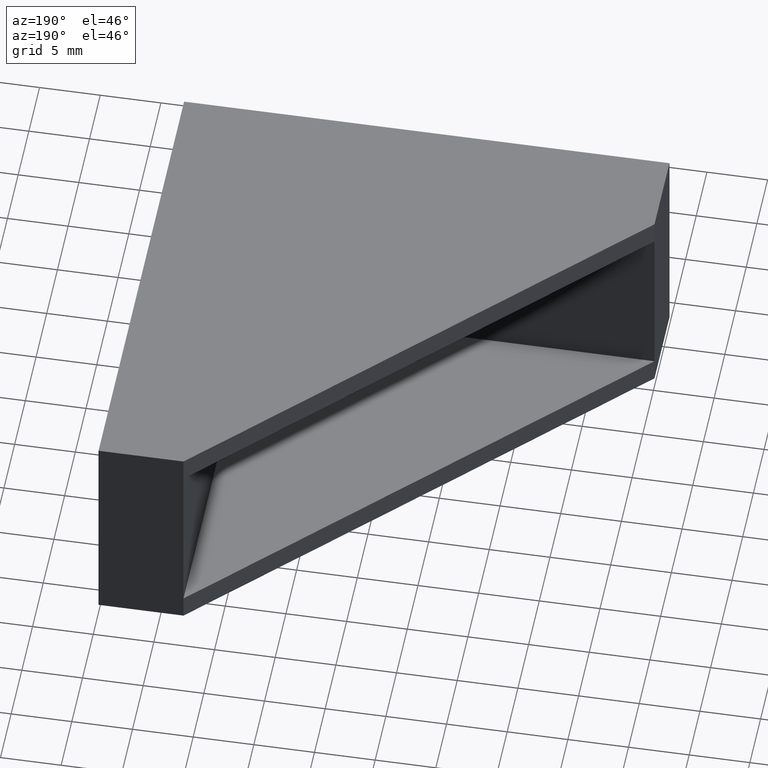
[diagram: clean part render]
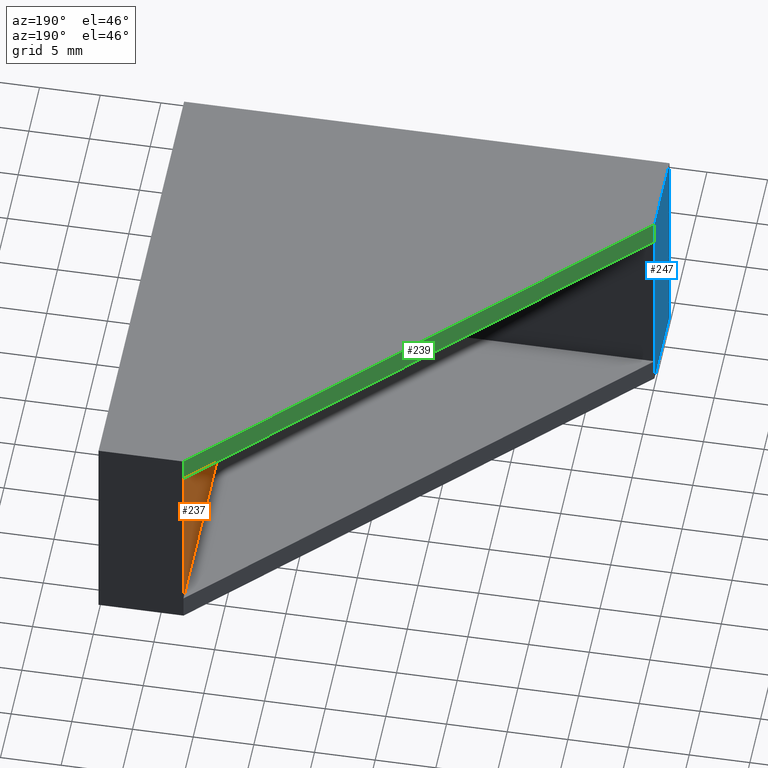
[diagram: same view with three faces highlighted in distinct colors, each labeled with its STEP entity id]
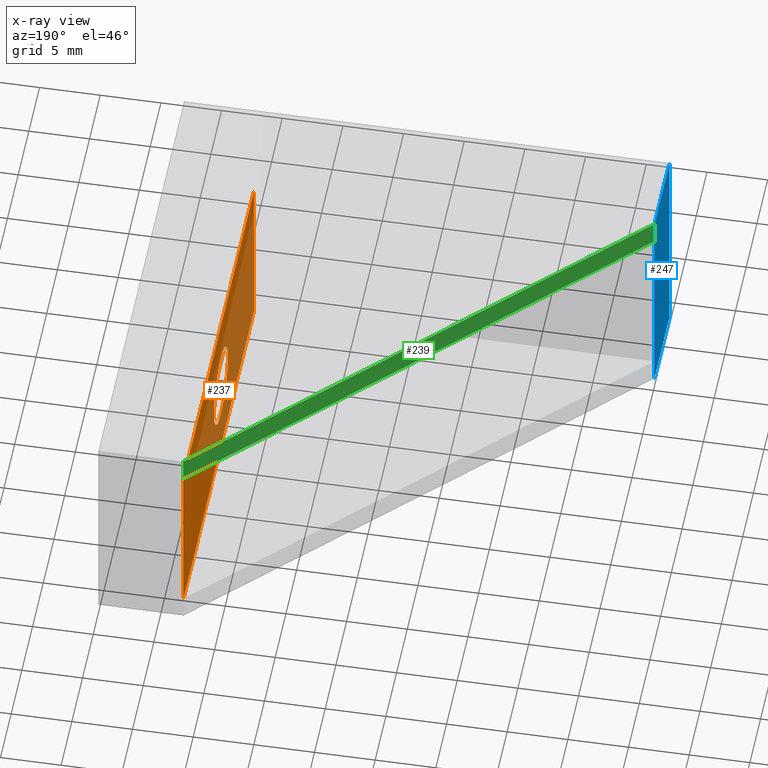
[diagram: x-ray of the same camera — body ghosted, the three highlighted faces saturated]
A machine part, auxiliary view with three faces highlighted in distinct colors.
The next image is the same camera in x-ray (body ghosted, the three faces saturated) — at least one of them is partly hidden behind the body in this view.
Their STEP definitions:

[orange] entity #237 — the highlighted planar face has unit normal (-1, 0, 0).
#15=LINE('',#347,#41);
#16=LINE('',#349,#42);
#17=LINE('',#351,#43);
#18=LINE('',#352,#44);
#41=VECTOR('',#285,32.9999999998681);
#42=VECTOR('',#286,14.);
#43=VECTOR('',#287,32.9999999998681);
#44=VECTOR('',#288,14.);
#67=PLANE('',#257);
#81=FACE_BOUND('',#104,.T.);
#87=FACE_OUTER_BOUND('',#103,.T.);
#103=EDGE_LOOP('',(#177,#178,#179,#180));
#104=EDGE_LOOP('',(#181));
#119=CIRCLE('',#252,3.25);
#123=VERTEX_POINT('',#335);
#127=VERTEX_POINT('',#345);
#128=VERTEX_POINT('',#346);
#129=VERTEX_POINT('',#348);
#130=VERTEX_POINT('',#350);
#143=EDGE_CURVE('',#123,#123,#119,.T.);
#147=EDGE_CURVE('',#127,#128,#15,.T.);
#148=EDGE_CURVE('',#128,#129,#16,.T.);
#149=EDGE_CURVE('',#130,#129,#17,.T.);
#150=EDGE_CURVE('',#127,#130,#18,.T.);
#177=ORIENTED_EDGE('',*,*,#147,.T.);
#178=ORIENTED_EDGE('',*,*,#148,.T.);
#179=ORIENTED_EDGE('',*,*,#149,.F.);
#180=ORIENTED_EDGE('',*,*,#150,.F.);
#181=ORIENTED_EDGE('',*,*,#143,.T.);
#237=ADVANCED_FACE('',(#87,#81),#67,.T.);
#252=AXIS2_PLACEMENT_3D('',#336,#273,#274);
#257=AXIS2_PLACEMENT_3D('',#344,#283,#284);
#273=DIRECTION('center_axis',(1.,0.,0.));
#274=DIRECTION('ref_axis',(0.,0.,1.));
#283=DIRECTION('center_axis',(-1.,0.,0.));
#284=DIRECTION('ref_axis',(0.,0.,1.));
#285=DIRECTION('',(0.,-1.,0.));
#286=DIRECTION('',(0.,0.,1.));
#287=DIRECTION('',(0.,-1.,0.));
#288=DIRECTION('',(0.,0.,1.));
#335=CARTESIAN_POINT('',(-7.,3.9801020972289E-16,-3.25));
#336=CARTESIAN_POINT('Origin',(-7.,0.,0.));
#344=CARTESIAN_POINT('Origin',(-6.99999999997181,17.49999999993,-8.99999999996408));
#345=CARTESIAN_POINT('',(-6.99999999997181,17.49999999993,-6.99999999996408));
#346=CARTESIAN_POINT('',(-6.99999999997181,-15.4999999999382,-6.99999999996408));
#347=CARTESIAN_POINT('',(-6.99999999997181,17.49999999993,-6.99999999996408));
#348=CARTESIAN_POINT('',(-6.99999999997181,-15.4999999999382,7.00000000003592));
#349=CARTESIAN_POINT('',(-6.99999999997181,-15.4999999999382,-6.99999999996408));
#350=CARTESIAN_POINT('',(-6.99999999997181,17.49999999993,7.00000000003592));
#351=CARTESIAN_POINT('',(-6.99999999997181,17.49999999993,7.00000000003592));
#352=CARTESIAN_POINT('',(-6.99999999997181,17.49999999993,-6.99999999996408));

[blue] entity #247 — the highlighted planar face has unit normal (-1, 0, 0).
#21=LINE('',#358,#47);
#25=LINE('',#365,#51);
#26=LINE('',#369,#52);
#30=LINE('',#377,#56);
#34=LINE('',#385,#60);
#40=LINE('',#396,#66);
#47=VECTOR('',#293,14.);
#51=VECTOR('',#299,2.);
#52=VECTOR('',#304,6.99999999997181);
#56=VECTOR('',#310,2.);
#60=VECTOR('',#318,6.99999999997181);
#66=VECTOR('',#330,18.);
#77=PLANE('',#267);
#97=FACE_OUTER_BOUND('',#116,.T.);
#116=EDGE_LOOP('',(#222,#223,#224,#225,#226,#227));
#131=VERTEX_POINT('',#354);
#132=VERTEX_POINT('',#356);
#134=VERTEX_POINT('',#361);
#135=VERTEX_POINT('',#368);
#138=VERTEX_POINT('',#376);
#140=VERTEX_POINT('',#384);
#153=EDGE_CURVE('',#132,#131,#21,.T.);
#157=EDGE_CURVE('',#131,#134,#25,.T.);
#158=EDGE_CURVE('',#134,#135,#26,.T.);
#162=EDGE_CURVE('',#138,#132,#30,.T.);
#166=EDGE_CURVE('',#138,#140,#34,.T.);
#172=EDGE_CURVE('',#140,#135,#40,.T.);
#222=ORIENTED_EDGE('',*,*,#158,.F.);
#223=ORIENTED_EDGE('',*,*,#157,.F.);
#224=ORIENTED_EDGE('',*,*,#153,.F.);
#225=ORIENTED_EDGE('',*,*,#162,.F.);
#226=ORIENTED_EDGE('',*,*,#166,.T.);
#227=ORIENTED_EDGE('',*,*,#172,.T.);
#247=ADVANCED_FACE('',(#97),#77,.T.);
#267=AXIS2_PLACEMENT_3D('',#395,#328,#329);
#293=DIRECTION('',(0.,0.,1.));
#299=DIRECTION('',(0.,0.,1.));
#304=DIRECTION('',(0.,-1.,0.));
#310=DIRECTION('',(0.,0.,1.));
#318=DIRECTION('',(0.,-1.,0.));
#328=DIRECTION('center_axis',(-1.,0.,0.));
#329=DIRECTION('ref_axis',(0.,0.,1.));
#330=DIRECTION('',(0.,0.,1.));
#354=CARTESIAN_POINT('',(-39.9999999998399,-15.4999999999382,7.00000000003592));
#356=CARTESIAN_POINT('',(-39.9999999998399,-15.4999999999382,-6.99999999996408));
#358=CARTESIAN_POINT('',(-39.9999999998399,-15.4999999999382,-6.99999999996408));
#361=CARTESIAN_POINT('',(-39.9999999998399,-15.4999999999382,9.00000000003593));
#365=CARTESIAN_POINT('',(-39.9999999998399,-15.4999999999382,7.00000000003592));
#368=CARTESIAN_POINT('',(-39.9999999998399,-22.49999999991,9.00000000003593));
#369=CARTESIAN_POINT('',(-39.9999999998399,-15.4999999999382,9.00000000003593));
#376=CARTESIAN_POINT('',(-39.9999999998399,-15.4999999999382,-8.99999999996408));
#377=CARTESIAN_POINT('',(-39.9999999998399,-15.4999999999382,-8.99999999996408));
#384=CARTESIAN_POINT('',(-39.9999999998399,-22.49999999991,-8.99999999996408));
#385=CARTESIAN_POINT('',(-39.9999999998399,-15.4999999999382,-8.99999999996408));
#395=CARTESIAN_POINT('Origin',(-39.9999999998399,-15.4999566928509,-9.00004330705133));
#396=CARTESIAN_POINT('',(-39.9999999998399,-22.49999999991,-8.99999999996408));

[green] entity #239 — the highlighted planar face has unit normal (0.7071, -0.7071, 0).
#22=LINE('',#362,#48);
#23=LINE('',#363,#49);
#24=LINE('',#364,#50);
#25=LINE('',#365,#51);
#48=VECTOR('',#296,46.6690475581256);
#49=VECTOR('',#297,2.);
#50=VECTOR('',#298,46.6690475581256);
#51=VECTOR('',#299,2.);
#69=PLANE('',#259);
#89=FACE_OUTER_BOUND('',#107,.T.);
#107=EDGE_LOOP('',(#187,#188,#189,#190));
#130=VERTEX_POINT('',#350);
#131=VERTEX_POINT('',#354);
#133=VERTEX_POINT('',#360);
#134=VERTEX_POINT('',#361);
#154=EDGE_CURVE('',#133,#134,#22,.T.);
#155=EDGE_CURVE('',#130,#133,#23,.T.);
#156=EDGE_CURVE('',#130,#131,#24,.T.);
#157=EDGE_CURVE('',#131,#134,#25,.T.);
#187=ORIENTED_EDGE('',*,*,#154,.F.);
#188=ORIENTED_EDGE('',*,*,#155,.F.);
#189=ORIENTED_EDGE('',*,*,#156,.T.);
#190=ORIENTED_EDGE('',*,*,#157,.T.);
#239=ADVANCED_FACE('',(#89),#69,.F.);
#259=AXIS2_PLACEMENT_3D('',#359,#294,#295);
#294=DIRECTION('center_axis',(0.707106781186548,-0.707106781186548,0.));
#295=DIRECTION('ref_axis',(0.,0.,-1.));
#296=DIRECTION('',(-0.707106781186548,-0.707106781186548,0.));
#297=DIRECTION('',(0.,0.,1.));
#298=DIRECTION('',(-0.707106781186548,-0.707106781186548,0.));
#299=DIRECTION('',(0.,0.,1.));
#350=CARTESIAN_POINT('',(-6.99999999997181,17.49999999993,7.00000000003592));
#354=CARTESIAN_POINT('',(-39.9999999998399,-15.4999999999382,7.00000000003592));
#359=CARTESIAN_POINT('Origin',(-6.99999999997181,17.49999999993,9.00000000003593));
#360=CARTESIAN_POINT('',(-6.99999999997181,17.49999999993,9.00000000003593));
#361=CARTESIAN_POINT('',(-39.9999999998399,-15.4999999999382,9.00000000003593));
#362=CARTESIAN_POINT('',(-6.99999999997181,17.49999999993,9.00000000003593));
#363=CARTESIAN_POINT('',(-6.99999999997181,17.49999999993,7.00000000003592));
#364=CARTESIAN_POINT('',(-6.99999999997181,17.49999999993,7.00000000003592));
#365=CARTESIAN_POINT('',(-39.9999999998399,-15.4999999999382,7.00000000003592));